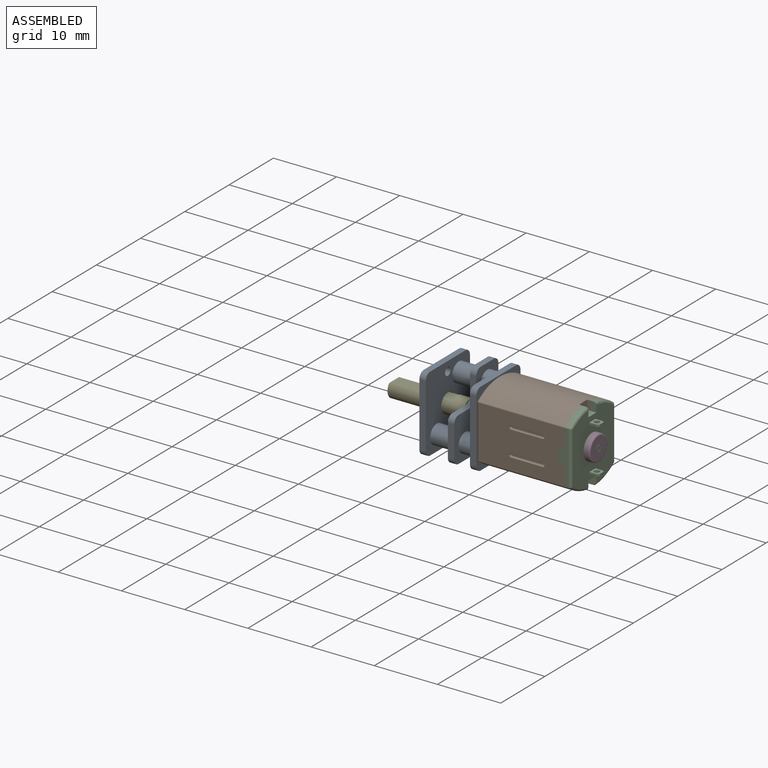
[diagram: assembled view]
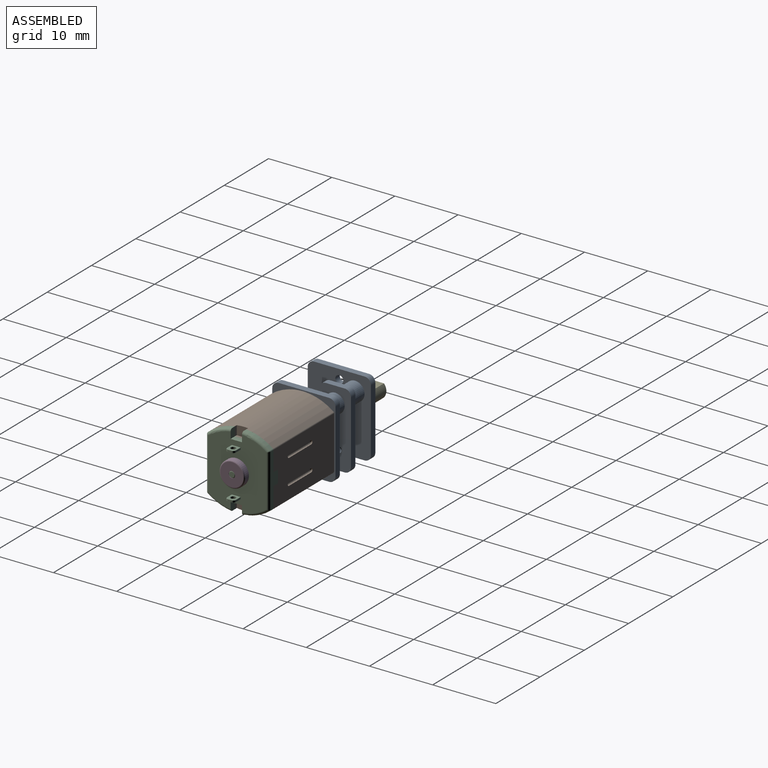
[diagram: assembled view, second angle]
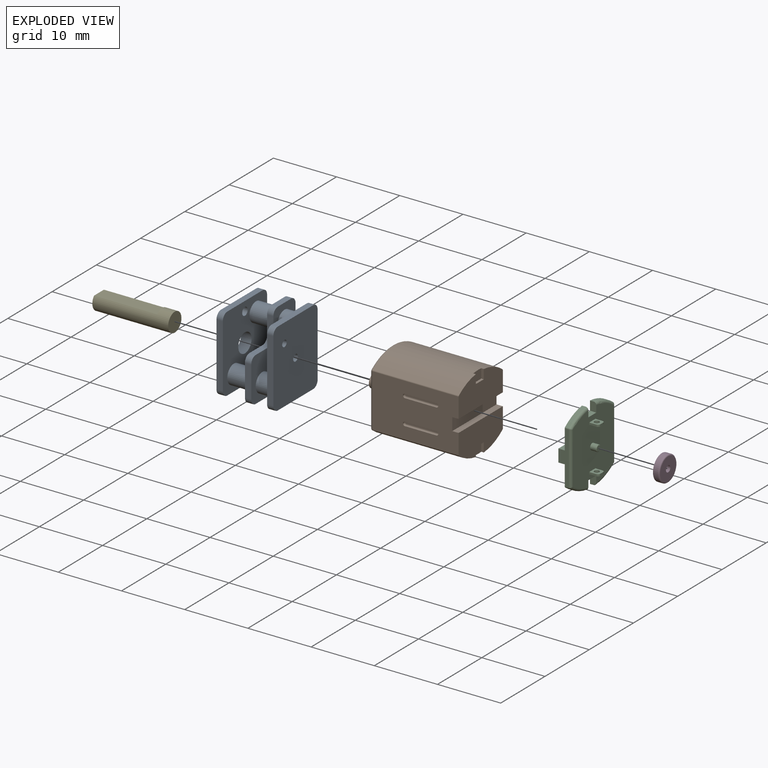
[diagram: exploded view]
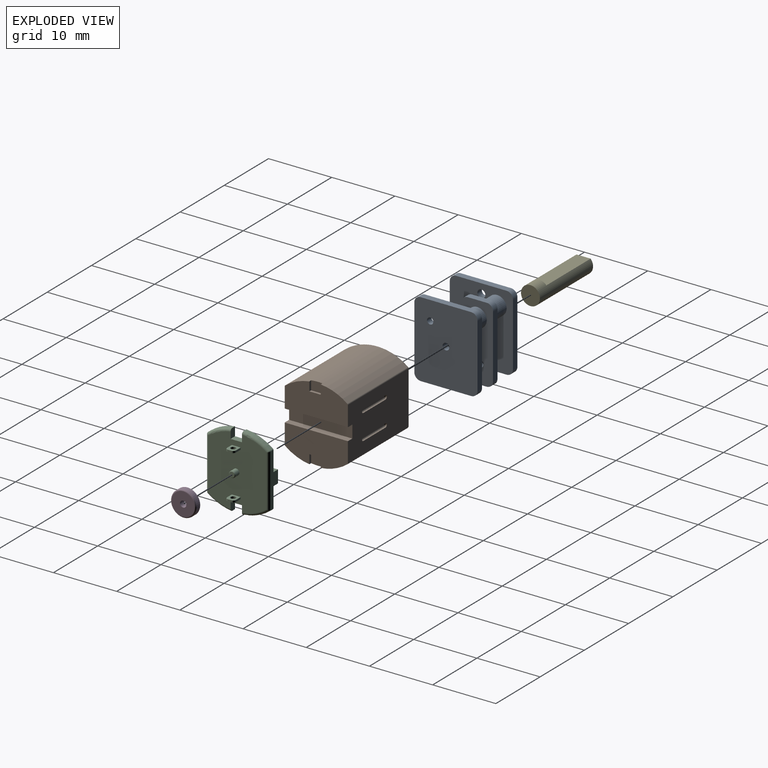
[diagram: exploded view, second angle]
ASSEMBLY  parts=5 mates=4
PART A: 60 faces, bbox 12x10x9.7 mm
  f0: plane 12x10mm, normal (0,0,1), area 84.9mm2, adj f3,f6,f9,f10,f11,f12,f45,f46
  f1: cylinder r=0.9mm len=3.65mm, axis (0,0,1), area 20.6mm2, adj f2,f3
  f2: plane 1.8x1.8mm, normal (0,0,1), area 2.5mm2, adj f1
  f3: cone r=1.75mm half-angle=45deg, axis (0,0,1), area 10mm2, adj f0,f1
  f4: cylinder r=0.9mm len=3.65mm, axis (0,0,1), area 20.6mm2, adj f5,f6
  f5: plane 1.8x1.8mm, normal (0,0,1), area 2.5mm2, adj f4
  f6: cone r=1.75mm half-angle=45deg, axis (0,0,1), area 10mm2, adj f0,f4
  f7: plane 12x10mm, normal (0,0,-1), area 78.4mm2, adj f16,f17,f18,f19,f20,f21,f22,f23
  f8: plane 12x10mm, normal (0,0,-1), area 95.5mm2, adj f9,f10,f11,f12,f13,f14,f15,f45
  f9: plane 8x1mm, normal (1,0,0), area 8mm2, adj f0,f8,f45,f46
  f10: plane 10x1mm, normal (0,1,0), area 10mm2, adj f0,f8,f46,f48
  f11: plane 8x1mm, normal (-1,0,0), area 8mm2, adj f0,f8,f47,f48
  f12: plane 10x1mm, normal (0,-1,0), area 10mm2, adj f0,f8,f45,f47
  f13: cylinder r=1.5mm len=3mm, axis (0,0,-1), area 16mm2, adj f8,f51
  f14: cylinder r=1.5mm len=3.5mm, axis (0,0,1), area 33mm2, adj f8,f24
  f15: cylinder r=1.5mm len=3.5mm, axis (0,0,1), area 33mm2, adj f8,f24
  f16: cylinder r=0.5mm len=1mm, axis (0,0,1), area 3.1mm2, adj f7,f24
  f17: cylinder r=0.5mm len=1mm, axis (0,0,1), area 3.1mm2, adj f7,f24
  f18: plane 8x1mm, normal (1,0,0), area 8mm2, adj f7,f24,f43,f44
  f19: plane 5x1mm, normal (0,1,0), area 5mm2, adj f7,f24,f40,f43
  f20: plane 3x1mm, normal (-1,0,0), area 3mm2, adj f7,f24,f39,f40
  f21: plane 3x1mm, normal (0,1,0), area 3mm2, adj f7,f24,f38,f39
  f22: plane 3x1mm, normal (-1,0,0), area 3mm2, adj f7,f24,f37,f38
  f23: plane 10x1mm, normal (0,-1,0), area 10mm2, adj f7,f24,f37,f44
  f24: plane 12x10mm, normal (0,0,1), area 78.4mm2, adj f14,f15,f16,f17,f18,f19,f20,f21
  f25: cylinder r=1.5mm len=3mm, axis (0,0,1), area 23.6mm2, adj f7,f34
  f26: cylinder r=1.5mm len=3mm, axis (0,0,1), area 23.6mm2, adj f7,f34
  f27: cylinder r=0.5mm len=1mm, axis (0,0,1), area 3.1mm2, adj f33,f34
  f28: cylinder r=0.53mm len=1.07mm, axis (0,0,1), area 3.3mm2, adj f33,f34
  f29: plane 8x1mm, normal (-1,0,0), area 8mm2, adj f33,f34,f35,f36
  f30: plane 10x1mm, normal (0,-1,0), area 10mm2, adj f33,f34,f36,f41
  f31: plane 8x1mm, normal (1,0,0), area 8mm2, adj f33,f34,f41,f42
  f32: plane 10x1mm, normal (0,1,0), area 10mm2, adj f33,f34,f35,f42
  f33: plane 12x10mm, normal (0,0,-1), area 117.5mm2, adj f27,f28,f29,f30,f31,f32,f35,f36
  f34: plane 12x10mm, normal (0,0,1), area 103.3mm2, adj f25,f26,f27,f28,f29,f30,f31,f32
  f35: cylinder r=1mm len=1mm, axis (0,0,1), area 1.6mm2, adj f29,f32,f33,f34
  f36: cylinder r=1mm len=1mm, axis (0,0,1), area 1.6mm2, adj f29,f30,f33,f34
  f37: cylinder r=1mm len=1mm, axis (0,0,1), area 1.6mm2, adj f7,f22,f23,f24
  f38: cylinder r=1mm len=1mm, axis (0,0,1), area 1.6mm2, adj f7,f21,f22,f24
  f39: cylinder r=1mm len=1mm, axis (0,0,-1), area 1.6mm2, adj f7,f20,f21,f24
  f40: cylinder r=1mm len=1mm, axis (0,0,1), area 1.6mm2, adj f7,f19,f20,f24
  f41: cylinder r=1mm len=1mm, axis (0,0,1), area 1.6mm2, adj f30,f31,f33,f34
  f42: cylinder r=1mm len=1mm, axis (0,0,1), area 1.6mm2, adj f31,f32,f33,f34
  f43: cylinder r=1mm len=1mm, axis (0,0,1), area 1.6mm2, adj f7,f18,f19,f24
  f44: cylinder r=1mm len=1mm, axis (0,0,1), area 1.6mm2, adj f7,f18,f23,f24
  f45: cylinder r=1mm len=1mm, axis (0,0,-1), area 1.6mm2, adj f0,f8,f9,f12
  f46: cylinder r=1mm len=1mm, axis (0,0,-1), area 1.6mm2, adj f0,f8,f9,f10
  f47: cylinder r=1mm len=1mm, axis (0,0,-1), area 1.6mm2, adj f0,f8,f11,f12
  f48: cylinder r=1mm len=1mm, axis (0,0,-1), area 1.6mm2, adj f0,f8,f10,f11
  f49: cylinder r=0.62mm len=1.25mm, axis (0,0,1), area 3.9mm2, adj f0,f8
  f50: cylinder r=0.62mm len=1.25mm, axis (0,0,1), area 3.9mm2, adj f0,f8
  f51: plane 3.4x3.4mm, normal (0,0,1), area 2mm2, adj f13,f53
  f52: cylinder r=2mm len=4mm, axis (0,0,-1), area 5mm2, adj f0,f53
  f53: torus R=1.7mm, axis (0,0,1), area 5.6mm2, adj f51,f52
  f54: plane 1.8x1.8mm, normal (0,0,-1), area 2.5mm2, adj f55
  f55: cylinder r=0.9mm len=2.5mm, axis (0,0,1), area 14.1mm2, adj f54,f56
  f56: plane 1.8x1.8mm, normal (0,0,1), area 2.5mm2, adj f55
  f57: plane 1.8x1.8mm, normal (0,0,-1), area 2.5mm2, adj f58
  f58: cylinder r=0.9mm len=2.5mm, axis (0,0,1), area 14.1mm2, adj f57,f59
  f59: plane 1.8x1.8mm, normal (0,0,1), area 2.5mm2, adj f58
PART B: 68 faces, bbox 17x13.3x10.7 mm
  f0: plane 13.6x8.33mm, normal (0,0,-1), area 104.7mm2, adj f2,f4,f5,f6,f7,f14,f15,f34
  f1: plane 11.2x9.2mm, normal (-1,0,0), area 90.9mm2, adj f8,f53,f54,f57,f58
  f2: plane 10x4.97mm, normal (1,0,0), area 41.8mm2, adj f0,f3,f7,f10,f12,f14,f64,f65
  f3: plane 13.6x8.33mm, normal (0,0,1), area 104.7mm2, adj f2,f4,f5,f6,f7,f12,f13,f16
  f4: plane 10x4.97mm, normal (1,0,0), area 41.8mm2, adj f0,f3,f5,f11,f13,f15,f60,f61
  f5: plane 10x1mm, normal (0,1,0), area 10mm2, adj f0,f3,f4,f6
  f6: plane 10x2mm, normal (1,0,0), area 20mm2, adj f0,f3,f5,f7
  f7: plane 10x1mm, normal (0,-1,0), area 10mm2, adj f0,f2,f3,f6
  f8: cylinder r=1mm len=3mm, axis (1,0,0), area 18.8mm2, adj f1,f9
  f9: plane 2x2mm, normal (-1,0,0), area 3.1mm2, adj f8
  f10: cylinder r=8.06mm len=13.6mm, axis (-1,0,0), area 143.3mm2, adj f2,f12,f14,f58,f65,f66,f67
  f11: cylinder r=8.06mm len=13.6mm, axis (-1,0,0), area 143.3mm2, adj f4,f13,f15,f53,f61,f62,f63
  f12: cylinder r=0.2mm len=13.6mm, axis (-1,0,0), area 2.5mm2, adj f2,f3,f10,f59
  f13: cylinder r=0.2mm len=13.6mm, axis (-1,0,0), area 2.5mm2, adj f3,f4,f11,f55
  f14: cylinder r=0.2mm len=13.6mm, axis (-1,0,0), area 2.5mm2, adj f0,f2,f10,f56
  f15: cylinder r=0.2mm len=13.6mm, axis (-1,0,0), area 2.5mm2, adj f0,f4,f11,f52
  f16: cylinder r=0.3mm len=0.6mm, axis (0,0,1), area 0.1mm2, adj f3,f17,f19,f32
  f17: plane 5x0.1mm, normal (0,-1,0), area 0.5mm2, adj f3,f16,f18,f33
  f18: cylinder r=0.3mm len=0.6mm, axis (0,0,1), area 0.1mm2, adj f3,f17,f19,f31
  f19: plane 5x0.1mm, normal (0,1,0), area 0.5mm2, adj f3,f16,f18,f30
  f20: plane 5.2x0.2mm, normal (0,0,1), area 1mm2, adj f30,f31,f32,f33
  f21: cylinder r=0.3mm len=0.6mm, axis (0,0,1), area 0.1mm2, adj f3,f22,f24,f28
  f22: plane 5x0.1mm, normal (0,-1,0), area 0.5mm2, adj f3,f21,f23,f29
  f23: cylinder r=0.3mm len=0.6mm, axis (0,0,1), area 0.1mm2, adj f3,f22,f24,f27
  f24: plane 5x0.1mm, normal (0,1,0), area 0.5mm2, adj f3,f21,f23,f26
  f25: plane 5.2x0.2mm, normal (0,0,1), area 1mm2, adj f26,f27,f28,f29
  f26: cylinder r=0.2mm len=5mm, axis (-1,0,0), area 1.6mm2, adj f24,f25,f27,f28
  f27: torus R=0.1mm, axis (0,0,-1), area 0.2mm2, adj f23,f25,f26,f29
  f28: torus R=0.1mm, axis (0,0,-1), area 0.2mm2, adj f21,f25,f26,f29
  f29: cylinder r=0.2mm len=5mm, axis (1,0,0), area 1.6mm2, adj f22,f25,f27,f28
  f30: cylinder r=0.2mm len=5mm, axis (1,0,0), area 1.6mm2, adj f19,f20,f31,f32
  f31: torus R=0.1mm, axis (0,0,1), area 0.2mm2, adj f18,f20,f30,f33
  f32: torus R=0.1mm, axis (0,0,1), area 0.2mm2, adj f16,f20,f30,f33
  f33: cylinder r=0.2mm len=5mm, axis (-1,0,0), area 1.6mm2, adj f17,f20,f31,f32
  f34: cylinder r=0.3mm len=0.6mm, axis (0,0,-1), area 0.1mm2, adj f0,f35,f37,f49
  f35: plane 5x0.1mm, normal (0,1,0), area 0.5mm2, adj f0,f34,f36,f51
  f36: cylinder r=0.3mm len=0.6mm, axis (0,0,-1), area 0.1mm2, adj f0,f35,f37,f50
  f37: plane 5x0.1mm, normal (0,-1,0), area 0.5mm2, adj f0,f34,f36,f48
  f38: plane 5.2x0.2mm, normal (0,0,-1), area 1mm2, adj f48,f49,f50,f51
  f39: cylinder r=0.3mm len=0.6mm, axis (0,0,-1), area 0.1mm2, adj f0,f40,f42,f45
  f40: plane 5x0.1mm, normal (0,1,0), area 0.5mm2, adj f0,f39,f41,f47
  f41: cylinder r=0.3mm len=0.6mm, axis (0,0,-1), area 0.1mm2, adj f0,f40,f42,f46
  f42: plane 5x0.1mm, normal (0,-1,0), area 0.5mm2, adj f0,f39,f41,f44
  f43: plane 5.2x0.2mm, normal (0,0,-1), area 1mm2, adj f44,f45,f46,f47
  f44: cylinder r=0.2mm len=5mm, axis (-1,0,0), area 1.6mm2, adj f42,f43,f45,f46
  f45: torus R=0.1mm, axis (0,0,1), area 0.2mm2, adj f39,f43,f44,f47
  f46: torus R=0.1mm, axis (0,0,1), area 0.2mm2, adj f41,f43,f44,f47
  f47: cylinder r=0.2mm len=5mm, axis (1,0,0), area 1.6mm2, adj f40,f43,f45,f46
  f48: cylinder r=0.2mm len=5mm, axis (1,0,0), area 1.6mm2, adj f37,f38,f49,f50
  f49: torus R=0.1mm, axis (0,0,-1), area 0.2mm2, adj f34,f38,f48,f51
  f50: torus R=0.1mm, axis (0,0,-1), area 0.2mm2, adj f36,f38,f48,f51
  f51: cylinder r=0.2mm len=5mm, axis (-1,0,0), area 1.6mm2, adj f35,f38,f49,f50
  f52: bspline ~0.42x0.4mm, area 0.1mm2, adj f15,f53,f54
  f53: torus R=7.66mm, axis (1,0,0), area 6.5mm2, adj f1,f11,f52,f55
  f54: cylinder r=0.4mm len=8.33mm, axis (0,1,0), area 5.2mm2, adj f0,f1,f52,f56
  f55: bspline ~0.42x0.4mm, area 0.1mm2, adj f13,f53,f57
  f56: bspline ~0.42x0.4mm, area 0.1mm2, adj f14,f54,f58
  f57: cylinder r=0.4mm len=8.33mm, axis (0,-1,0), area 5.2mm2, adj f1,f3,f55,f59
  f58: torus R=7.66mm, axis (1,0,0), area 6.5mm2, adj f1,f10,f56,f59
  f59: bspline ~0.42x0.4mm, area 0.1mm2, adj f12,f57,f58
  f60: plane 1.8x0.4mm, normal (0,-1,0), area 0.7mm2, adj f4,f61,f62,f63
  f61: plane 1.42x0.4mm, normal (0,0,1), area 0.6mm2, adj f4,f11,f60,f63
  f62: plane 1.47x0.4mm, normal (0,0,-1), area 0.6mm2, adj f4,f11,f60,f63
  f63: plane 1.8x1.5mm, normal (1,0,0), area 2.7mm2, adj f11,f60,f61,f62
  f64: plane 1.8x0.4mm, normal (0,1,0), area 0.7mm2, adj f2,f65,f66,f67
  f65: plane 1.47x0.4mm, normal (0,0,-1), area 0.6mm2, adj f2,f10,f64,f67
  f66: plane 1.42x0.4mm, normal (0,0,1), area 0.6mm2, adj f2,f10,f64,f67
  f67: plane 1.8x1.5mm, normal (1,0,0), area 2.7mm2, adj f10,f64,f65,f66
PART C: 51 faces, bbox 3.5x13.3x10.7 mm
  f0: cylinder r=8.06mm len=4.22mm, axis (-1,0,0), area 2.8mm2, adj f2,f10,f26,f48
  f1: cylinder r=8.06mm len=3.82mm, axis (-1,0,0), area 2.5mm2, adj f3,f7,f20,f45
  f2: torus R=7.66mm, axis (-1,0,0), area 2.8mm2, adj f0,f6,f27,f48
  f3: torus R=7.66mm, axis (-1,0,0), area 2.5mm2, adj f1,f6,f21,f45
  f4: plane 1.5x1.4mm, normal (0,-1,0), area 1.5mm2, adj f6,f30,f31,f32,f39,f40,f41
  f5: plane 1.5x1.4mm, normal (0,1,0), area 1.5mm2, adj f6,f30,f31,f32,f39,f40,f41
  f6: plane 11.14x9.2mm, normal (1,0,0), area 88.5mm2, adj f2,f3,f4,f5,f16,f17,f18,f19
  f7: plane 10x4.97mm, normal (-1,0,0), area 41.8mm2, adj f1,f8,f9,f13,f15,f20,f24,f44
  f8: plane 8.33x1.6mm, normal (0,0,1), area 7mm2, adj f7,f10,f11,f12,f13,f18,f24,f26
  f9: plane 8.33x1.6mm, normal (0,0,-1), area 7mm2, adj f7,f10,f11,f12,f13,f17,f20,f22
  f10: plane 10x4.97mm, normal (-1,0,0), area 41.8mm2, adj f0,f8,f9,f11,f14,f22,f26,f47
  f11: plane 10x1mm, normal (0,1,0), area 10mm2, adj f8,f9,f10,f12
  f12: plane 10x2mm, normal (-1,0,0), area 20mm2, adj f8,f9,f11,f13
  f13: plane 10x1mm, normal (0,-1,0), area 10mm2, adj f7,f8,f9,f12
  f14: cylinder r=8.06mm len=3.82mm, axis (-1,0,0), area 2.5mm2, adj f10,f16,f22,f49
  f15: cylinder r=8.06mm len=4.22mm, axis (-1,0,0), area 2.8mm2, adj f7,f19,f24,f46
  f16: torus R=7.66mm, axis (-1,0,0), area 2.5mm2, adj f6,f14,f23,f49
  f17: cylinder r=0.4mm len=8.33mm, axis (0,-1,0), area 5.2mm2, adj f6,f9,f21,f23
  f18: cylinder r=0.4mm len=8.33mm, axis (0,1,0), area 5.2mm2, adj f6,f8,f25,f27
  f19: torus R=7.66mm, axis (-1,0,0), area 2.8mm2, adj f6,f15,f25,f46
  f20: cylinder r=0.2mm len=0.6mm, axis (-1,0,0), area 0.1mm2, adj f1,f7,f9,f21
  f21: bspline ~0.46x0.4mm, area 0.1mm2, adj f3,f17,f20
  f22: cylinder r=0.2mm len=0.6mm, axis (-1,0,0), area 0.1mm2, adj f9,f10,f14,f23
  f23: bspline ~0.46x0.4mm, area 0.1mm2, adj f16,f17,f22
  f24: cylinder r=0.2mm len=0.6mm, axis (-1,0,0), area 0.1mm2, adj f7,f8,f15,f25
  f25: bspline ~0.46x0.4mm, area 0.1mm2, adj f18,f19,f24
  f26: cylinder r=0.2mm len=0.6mm, axis (-1,0,0), area 0.1mm2, adj f0,f8,f10,f27
  f27: bspline ~0.46x0.4mm, area 0.1mm2, adj f2,f18,f26
  f28: cylinder r=0.5mm len=1mm, axis (-1,0,0), area 2.8mm2, adj f6,f50
  f29: plane 0.8x0.8mm, normal (1,0,0), area 0.5mm2, adj f50
  f30: plane 1.1x0.3mm, normal (0,0,-1), area 0.3mm2, adj f4,f5,f6,f41
  f31: plane 1.1x0.3mm, normal (0,0,1), area 0.3mm2, adj f4,f5,f6,f40
  f32: plane 0.6x0.3mm, normal (1,0,0), area 0.2mm2, adj f4,f5,f40,f41
  f33: plane 1.1x0.3mm, normal (0,0,1), area 0.3mm2, adj f6,f34,f36,f42
  f34: plane 1.5x1.4mm, normal (0,-1,0), area 1.5mm2, adj f6,f33,f35,f37,f38,f42,f43
  f35: plane 1.1x0.3mm, normal (0,0,-1), area 0.3mm2, adj f6,f34,f36,f43
  f36: plane 1.5x1.4mm, normal (0,1,0), area 1.5mm2, adj f6,f33,f35,f37,f38,f42,f43
  f37: plane 0.6x0.3mm, normal (1,0,0), area 0.2mm2, adj f34,f36,f42,f43
  f38: cylinder r=0.4mm len=0.8mm, axis (0,1,0), area 0.8mm2, adj f34,f36
  f39: cylinder r=0.4mm len=0.8mm, axis (0,-1,0), area 0.8mm2, adj f4,f5
  f40: cylinder r=0.4mm len=0.4mm, axis (0,-1,0), area 0.2mm2, adj f4,f5,f31,f32
  f41: cylinder r=0.4mm len=0.4mm, axis (0,1,0), area 0.2mm2, adj f4,f5,f30,f32
  f42: cylinder r=0.4mm len=0.4mm, axis (0,1,0), area 0.2mm2, adj f33,f34,f36,f37
  f43: cylinder r=0.4mm len=0.4mm, axis (0,-1,0), area 0.2mm2, adj f34,f35,f36,f37
  f44: plane 1.8x1mm, normal (0,-1,0), area 1.8mm2, adj f6,f7,f45,f46
  f45: plane 1.45x1.03mm, normal (0,0,1), area 1.4mm2, adj f1,f3,f6,f7,f44
  f46: plane 1.49x1.02mm, normal (0,0,-1), area 1.4mm2, adj f6,f7,f15,f19,f44
  f47: plane 1.8x1mm, normal (0,1,0), area 1.8mm2, adj f6,f10,f48,f49
  f48: plane 1.49x1.02mm, normal (0,0,-1), area 1.4mm2, adj f0,f2,f6,f10,f47
  f49: plane 1.45x1.03mm, normal (0,0,1), area 1.4mm2, adj f6,f10,f14,f16,f47
  f50: torus R=0.4mm, axis (1,0,0), area 0.5mm2, adj f28,f29
PART D: 5 faces, bbox 1x4.3x4.3 mm
  f0: plane 3.6x3.6mm, normal (1,0,0), area 9.4mm2, adj f3,f4
  f1: plane 4x4mm, normal (-1,0,0), area 11.8mm2, adj f2,f3
  f2: cylinder r=2mm len=4mm, axis (-1,0,0), area 10.1mm2, adj f1,f4
  f3: cylinder r=0.5mm len=1mm, axis (-1,0,0), area 3.1mm2, adj f0,f1
  f4: torus R=1.8mm, axis (1,0,0), area 3.8mm2, adj f0,f2
PART E: 5 faces, bbox 3x12x3 mm
  f0: cylinder r=1.5mm len=12mm, axis (0,-1,0), area 87.9mm2, adj f1,f2,f3,f4
  f1: plane 3x2.5mm, normal (0,1,0), area 6.3mm2, adj f0,f2
  f2: plane 10x2.24mm, normal (0,0,-1), area 22.4mm2, adj f0,f1,f3
  f3: plane 2.24x0.5mm, normal (0,1,0), area 0.8mm2, adj f0,f2
  f4: plane 3x3mm, normal (0,-1,0), area 7.1mm2, adj f0
PLACE A rot(axis=(0.71,0,-0.71),180deg) t=(-20.36,-0.03,-5.09)mm
PLACE B rot(axis=(-1,0,0),90deg) t=(-12.36,-5.03,-5.09)mm
PLACE C rot(axis=(-1,0,0),90deg) t=(-12.36,-5.03,-5.09)mm
PLACE D t=(-12.36,-0.23,-9.89)mm
PLACE E rot(axis=(0.71,-0.71,0),180deg) t=(-18.86,-0.03,-5.09)mm
MATE revolute E.f0 <-> A.f16  axis (1,0,0) through (-16.86,-0.03,-5.09)mm
MATE fastened B.f8 <-> A.f16  axis (1,0,0) through (-12.36,-0.03,-5.09)mm
MATE fastened C.f28 <-> D.f2  axis (-1,0,0) through (2.64,-0.23,-5.09)mm
MATE fastened C.f12 <-> B.f8  axis (-1,0,0) through (0.64,-0.03,-5.09)mm
